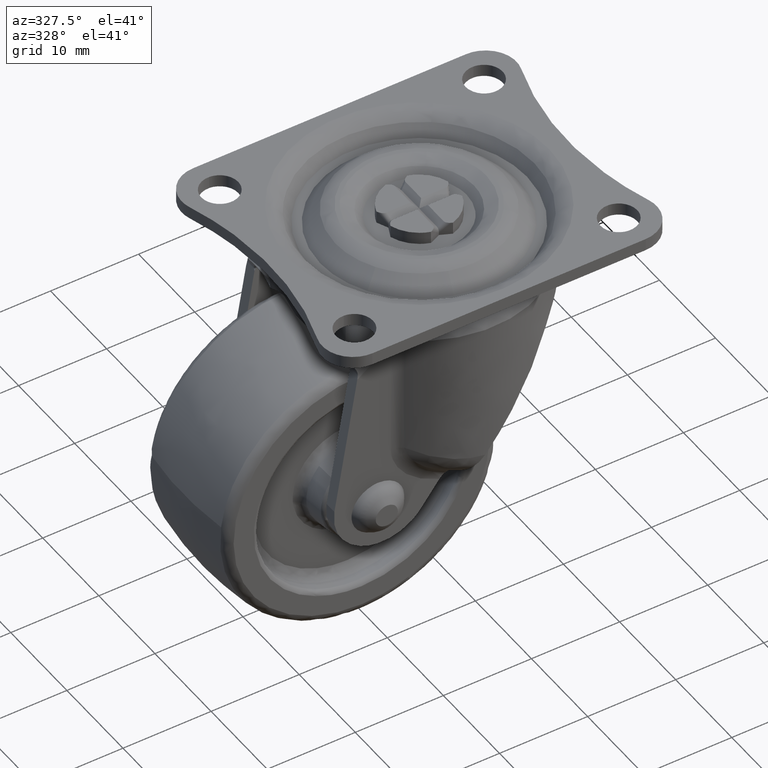
[diagram: clean part render]
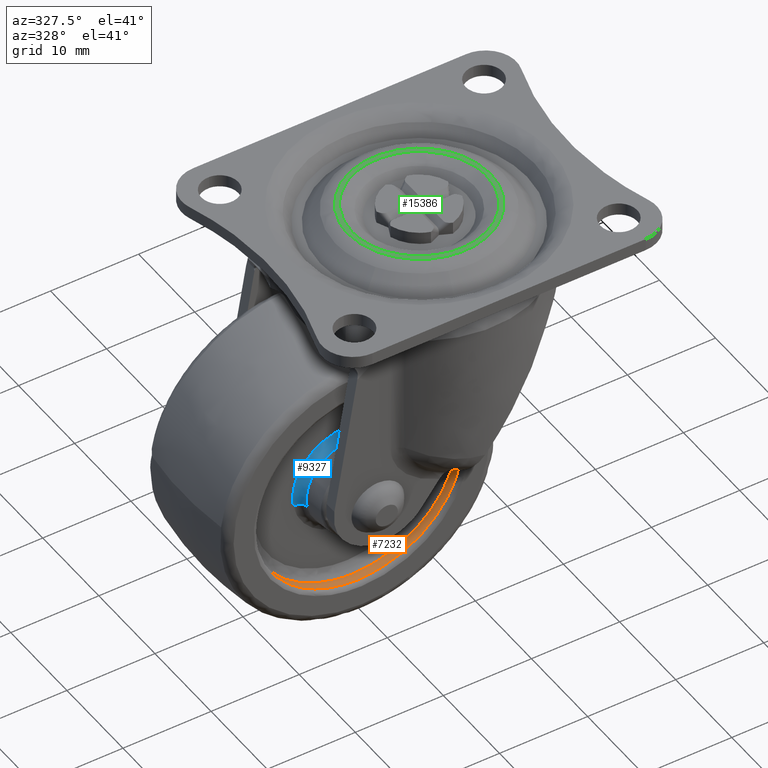
[diagram: same view with three faces highlighted in distinct colors, each labeled with its STEP entity id]
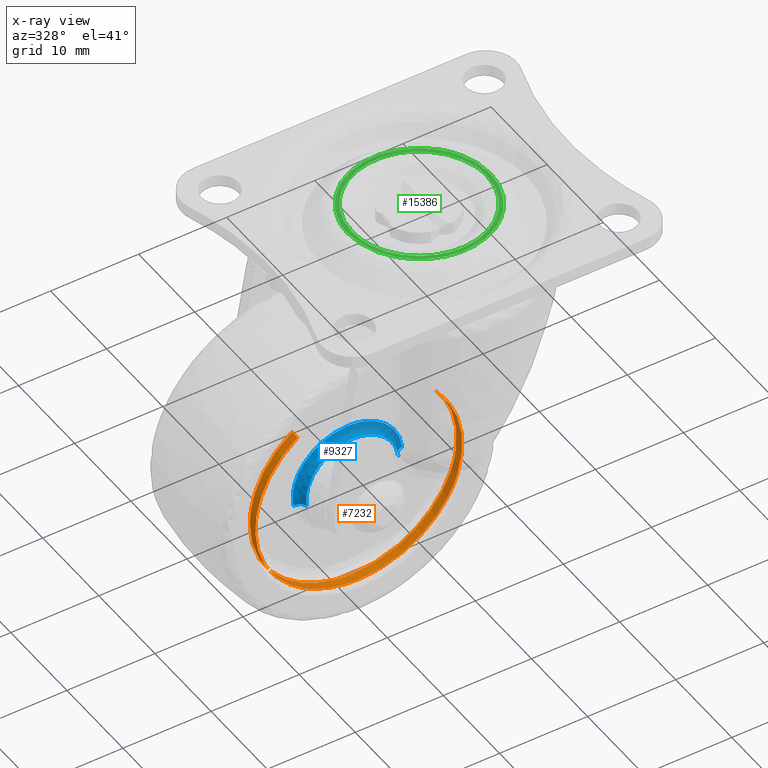
[diagram: x-ray of the same camera — body ghosted, the three highlighted faces saturated]
A machine part, auxiliary view with three faces highlighted in distinct colors.
The next image is the same camera in x-ray (body ghosted, the three faces saturated) — at least one of them is partly hidden behind the body in this view.
Their STEP definitions:

[orange] entity #7232 — the highlighted face is a freeform B-spline surface patch.
#7064=CARTESIAN_POINT('',(-6.943146605351321,-5.475000000000000,9.479199080966618));
#7065=CARTESIAN_POINT('',(-7.214437210509213,-5.474999999999999,9.280489208098997));
#7066=CARTESIAN_POINT('',(-7.473919088263724,-5.474999999999999,9.066588854805707));
#7067=CARTESIAN_POINT('',(-16.540507943069432,-5.474999999999999,1.592669766541983));
#7068=CARTESIAN_POINT('',(-9.066588854805707,-5.474999999999999,-7.473919088263723));
#7069=CARTESIAN_POINT('',(-1.592669766541983,-5.474999999999999,-16.540507943069432));
#7070=CARTESIAN_POINT('',(7.473919088263724,-5.474999999999999,-9.066588854805707));
#7071=CARTESIAN_POINT('',(16.540507943069432,-5.474999999999999,-1.592669766541982));
#7072=CARTESIAN_POINT('',(9.066588854805707,-5.474999999999999,7.473919088263725));
#7073=CARTESIAN_POINT('',(-6.943146605351321,-6.525625000000002,9.479199080966618));
#7074=CARTESIAN_POINT('',(-7.214437210509213,-6.525625000000001,9.280489208098997));
#7075=CARTESIAN_POINT('',(-7.473919088263724,-6.525625000000001,9.066588854805707));
#7076=CARTESIAN_POINT('',(-16.540507943069432,-6.525625000000001,1.592669766541983));
#7077=CARTESIAN_POINT('',(-9.066588854805707,-6.525625000000001,-7.473919088263723));
#7078=CARTESIAN_POINT('',(-1.592669766541983,-6.525625000000001,-16.540507943069432));
#7079=CARTESIAN_POINT('',(7.473919088263724,-6.525625000000001,-9.066588854805707));
#7080=CARTESIAN_POINT('',(16.540507943069432,-6.525625000000001,-1.592669766541982));
#7081=CARTESIAN_POINT('',(9.066588854805707,-6.525625000000001,7.473919088263725));
#7089=(BOUNDED_SURFACE()B_SPLINE_SURFACE(2,1,((#7064,#7073),(#7065,#7074),(#7066,#7075),(#7067,#7076),(#7068,#7077),(#7069,#7078),(#7070,#7079),(#7071,#7080),(#7072,#7081)),.UNSPECIFIED.,.F.,.F.,.U.)B_SPLINE_SURFACE_WITH_KNOTS((3,2,2,2,3),(2,2),(0.0,0.778721497261420,20.246758928796879,39.714796360332343,59.182833791867800),(0.0,1.0),.UNSPECIFIED.)GEOMETRIC_REPRESENTATION_ITEM()RATIONAL_B_SPLINE_SURFACE(((0.977505800795127,0.977505800795127),(0.988284271247462,0.988284271247462),(1.0,1.0),(0.707106781186548,0.707106781186548),(1.0,1.0),(0.707106781186548,0.707106781186548),(1.0,1.0),(0.707106781186548,0.707106781186548),(1.0,1.0)))REPRESENTATION_ITEM('')SURFACE());
#7090=CARTESIAN_POINT('',(-6.943144218075904,-6.499999999999753,9.479200829552582));
#7091=VERTEX_POINT('',#7090);
#7092=CARTESIAN_POINT('',(-5.002906675892424,-6.499999999949907,-10.631717866474400));
#7093=VERTEX_POINT('',#7092);
#7094=CARTESIAN_POINT('',(-6.943144218075904,-6.499999999999752,9.479200829552582));
#7095=CARTESIAN_POINT('',(-11.750000000000000,-6.500000000000000,5.958366792010422));
#7096=CARTESIAN_POINT('',(-11.750000000000000,-6.500000000000000,8.173480E-016));
#7097=CARTESIAN_POINT('',(-11.750000000000002,-6.500000000000000,-7.456776746139382));
#7098=CARTESIAN_POINT('',(-5.002906675892425,-6.499999999949907,-10.631717866474400));
#7106=(BOUNDED_CURVE()B_SPLINE_CURVE(2,(#7094,#7095,#7096,#7097,#7098),.UNSPECIFIED.,.F.,.U.)B_SPLINE_CURVE_WITH_KNOTS((3,2,3),(0.601836024884041,0.750000000000000,0.927668464636393),.UNSPECIFIED.)CURVE()GEOMETRIC_REPRESENTATION_ITEM()RATIONAL_B_SPLINE_CURVE((0.858582435047539,0.826415105664362,1.0,0.791848446044012,0.879552628112341))REPRESENTATION_ITEM(''));
#7107=EDGE_CURVE('',#7091,#7093,#7106,.T.);
#7108=ORIENTED_EDGE('',*,*,#7107,.T.);
#7109=CARTESIAN_POINT('',(0.0,-6.500000000000000,-11.750000000000000));
#7110=VERTEX_POINT('',#7109);
#7111=CARTESIAN_POINT('',(-5.002906675892424,-6.499999999949907,-10.631717866474400));
#7112=CARTESIAN_POINT('',(-2.626436174044774,-6.500000000000000,-11.750000000000007));
#7113=CARTESIAN_POINT('',(0.0,-6.500000000000000,-11.750000000000000));
#7121=(BOUNDED_CURVE()B_SPLINE_CURVE(2,(#7111,#7112,#7113),.UNSPECIFIED.,.F.,.U.)B_SPLINE_CURVE_WITH_KNOTS((3,3),(0.927668464636392,1.0),.UNSPECIFIED.)CURVE()GEOMETRIC_REPRESENTATION_ITEM()RATIONAL_B_SPLINE_CURVE((0.879552628112341,0.915258335142536,1.0))REPRESENTATION_ITEM(''));
#7122=EDGE_CURVE('',#7093,#7110,#7121,.T.);
#7123=ORIENTED_EDGE('',*,*,#7122,.T.);
#7124=CARTESIAN_POINT('',(11.138265860775780,-6.499999999944276,-3.741862319043396));
#7125=VERTEX_POINT('',#7124);
#7126=CARTESIAN_POINT('',(0.0,-6.500000000000000,-11.750000000000000));
#7127=CARTESIAN_POINT('',(8.447959397574214,-6.500000000000001,-11.750000000000000));
#7128=CARTESIAN_POINT('',(11.138265860775775,-6.499999999944276,-3.741862319043397));
#7136=(BOUNDED_CURVE()B_SPLINE_CURVE(2,(#7126,#7127,#7128),.UNSPECIFIED.,.F.,.U.)B_SPLINE_CURVE_WITH_KNOTS((3,3),(0.0,0.195865557710808),.UNSPECIFIED.)CURVE()GEOMETRIC_REPRESENTATION_ITEM()RATIONAL_B_SPLINE_CURVE((1.0,0.770529225389557,0.900621820758359))REPRESENTATION_ITEM(''));
#7137=EDGE_CURVE('',#7110,#7125,#7136,.T.);
#7138=ORIENTED_EDGE('',*,*,#7137,.T.);
#7139=CARTESIAN_POINT('',(9.066589178809434,-6.500000000000020,7.473918695215744));
#7140=VERTEX_POINT('',#7139);
#7141=CARTESIAN_POINT('',(11.138265860775773,-6.499999999944275,-3.741862319043396));
#7142=CARTESIAN_POINT('',(11.750000000000004,-6.500000000000001,-1.920935492283579));
#7143=CARTESIAN_POINT('',(11.750000000000000,-6.500000000000000,8.173480E-016));
#7144=CARTESIAN_POINT('',(11.750000000000000,-6.500000000000001,4.218680492239304));
#7145=CARTESIAN_POINT('',(9.066589178809434,-6.500000000000020,7.473918695215744));
#7153=(BOUNDED_CURVE()B_SPLINE_CURVE(2,(#7141,#7142,#7143,#7144,#7145),.UNSPECIFIED.,.F.,.U.)B_SPLINE_CURVE_WITH_KNOTS((3,2,3),(0.195865557710808,0.250000000000000,0.360504612746965),.UNSPECIFIED.)CURVE()GEOMETRIC_REPRESENTATION_ITEM()RATIONAL_B_SPLINE_CURVE((0.900621820758359,0.936577555796990,1.0,0.870535793115230,0.855522722601615))REPRESENTATION_ITEM(''));
#7154=EDGE_CURVE('',#7125,#7140,#7153,.T.);
#7155=ORIENTED_EDGE('',*,*,#7154,.T.);
#7156=CARTESIAN_POINT('',(9.066589174811064,-5.500000000000000,7.473918700066154));
#7157=VERTEX_POINT('',#7156);
#7158=CARTESIAN_POINT('',(9.066589174811064,-5.500000000000000,7.473918700066154));
#7159=CARTESIAN_POINT('',(9.066589178809434,-6.500000000000020,7.473918695215744));
#7160=QUASI_UNIFORM_CURVE('',1,(#7158,#7159),.UNSPECIFIED.,.F.,.U.);
#7161=EDGE_CURVE('',#7157,#7140,#7160,.T.);
#7162=ORIENTED_EDGE('',*,*,#7161,.F.);
#7163=CARTESIAN_POINT('',(11.671412719225559,-5.500000883204328,-1.356696405763593));
#7164=VERTEX_POINT('',#7163);
#7165=CARTESIAN_POINT('',(11.671412719225563,-5.500000883204328,-1.356696405763594));
#7166=CARTESIAN_POINT('',(11.749999999999998,-5.500000000000001,-0.680624305579969));
#7167=CARTESIAN_POINT('',(11.750000000000000,-5.500000000000000,8.173480E-016));
#7168=CARTESIAN_POINT('',(11.750000000000005,-5.500000000000000,4.218680499335585));
#7169=CARTESIAN_POINT('',(9.066589174811064,-5.499999999999999,7.473918700066154));
#7177=(BOUNDED_CURVE()B_SPLINE_CURVE(2,(#7165,#7166,#7167,#7168,#7169),.UNSPECIFIED.,.F.,.U.)B_SPLINE_CURVE_WITH_KNOTS((3,2,3),(0.230000120131001,0.250000000000000,0.360504612908781),.UNSPECIFIED.)CURVE()GEOMETRIC_REPRESENTATION_ITEM()RATIONAL_B_SPLINE_CURVE((0.956886354637728,0.976568683237146,1.0,0.870535792925651,0.855522722557647))REPRESENTATION_ITEM(''));
#7178=EDGE_CURVE('',#7164,#7157,#7177,.T.);
#7179=ORIENTED_EDGE('',*,*,#7178,.F.);
#7180=CARTESIAN_POINT('',(0.0,-5.500000000000000,-11.750000000000000));
#7181=VERTEX_POINT('',#7180);
#7182=CARTESIAN_POINT('',(0.0,-5.500000000000000,-11.750000000000000));
#7183=CARTESIAN_POINT('',(10.463284965587011,-5.500000000000000,-11.750000000000000));
#7184=CARTESIAN_POINT('',(11.671412719225563,-5.500000883204328,-1.356696405763594));
#7192=(BOUNDED_CURVE()B_SPLINE_CURVE(2,(#7182,#7183,#7184),.UNSPECIFIED.,.F.,.U.)B_SPLINE_CURVE_WITH_KNOTS((3,3),(0.0,0.230000120131001),.UNSPECIFIED.)CURVE()GEOMETRIC_REPRESENTATION_ITEM()RATIONAL_B_SPLINE_CURVE((1.0,0.730538097949402,0.956886354637728))REPRESENTATION_ITEM(''));
#7193=EDGE_CURVE('',#7181,#7164,#7192,.T.);
#7194=ORIENTED_EDGE('',*,*,#7193,.F.);
#7195=CARTESIAN_POINT('',(-11.749999999998639,-5.500001163718675,0.000000010181955));
#7196=VERTEX_POINT('',#7195);
#7197=CARTESIAN_POINT('',(-11.749999999998652,-5.500001163718678,0.000000010181955));
#7198=CARTESIAN_POINT('',(-11.750000010181283,-5.500000581859338,-11.750000000000005));
#7199=CARTESIAN_POINT('',(0.0,-5.500000000000000,-11.750000000000000));
#7207=(BOUNDED_CURVE()B_SPLINE_CURVE(2,(#7197,#7198,#7199),.UNSPECIFIED.,.F.,.U.)B_SPLINE_CURVE_WITH_KNOTS((3,3),(0.749999999846814,1.0),.UNSPECIFIED.)CURVE()GEOMETRIC_REPRESENTATION_ITEM()RATIONAL_B_SPLINE_CURVE((1.000000000358936,0.707106781007079,1.0))REPRESENTATION_ITEM(''));
#7208=EDGE_CURVE('',#7196,#7181,#7207,.T.);
#7209=ORIENTED_EDGE('',*,*,#7208,.F.);
#7210=CARTESIAN_POINT('',(-6.943144247525332,-5.500000456274361,9.479200807981842));
#7211=VERTEX_POINT('',#7210);
#7212=CARTESIAN_POINT('',(-6.943144247525332,-5.500000456274361,9.479200807981842));
#7213=CARTESIAN_POINT('',(-11.749999994835765,-5.500000868660690,5.958366772846385));
#7214=CARTESIAN_POINT('',(-11.749999999998646,-5.500001163718675,0.000000010181955));
#7222=(BOUNDED_CURVE()B_SPLINE_CURVE(2,(#7212,#7213,#7214),.UNSPECIFIED.,.F.,.U.)B_SPLINE_CURVE_WITH_KNOTS((3,3),(0.601836025355581,0.749999999846814),.UNSPECIFIED.)CURVE()GEOMETRIC_REPRESENTATION_ITEM()RATIONAL_B_SPLINE_CURVE((0.858582434842790,0.826415106250063,0.999999999641063))REPRESENTATION_ITEM(''));
#7223=EDGE_CURVE('',#7211,#7196,#7222,.T.);
#7224=ORIENTED_EDGE('',*,*,#7223,.F.);
#7225=CARTESIAN_POINT('',(-6.943144247525332,-5.500000456274361,9.479200807981842));
#7226=CARTESIAN_POINT('',(-6.943144218075904,-6.499999999999753,9.479200829552582));
#7227=QUASI_UNIFORM_CURVE('',1,(#7225,#7226),.UNSPECIFIED.,.F.,.U.);
#7228=EDGE_CURVE('',#7211,#7091,#7227,.T.);
#7229=ORIENTED_EDGE('',*,*,#7228,.T.);
#7230=EDGE_LOOP('',(#7108,#7123,#7138,#7155,#7162,#7179,#7194,#7209,#7224,#7229));
#7231=FACE_OUTER_BOUND('',#7230,.T.);
#7232=ADVANCED_FACE('',(#7231),#7089,.F.);

[blue] entity #9327 — the highlighted face is a freeform B-spline surface patch.
#7401=CARTESIAN_POINT('',(-3.805821790167432,-5.385638474248880,3.611590026100532));
#7402=VERTEX_POINT('',#7401);
#7408=CARTESIAN_POINT('',(-5.170782628413474,-5.385638474143114,-0.889308172101917));
#7409=VERTEX_POINT('',#7408);
#7410=CARTESIAN_POINT('',(-3.805821790167431,-5.385638474248880,3.611590026100532));
#7411=CARTESIAN_POINT('',(-5.246700107223780,-5.385638474248889,2.093221092638470));
#7412=CARTESIAN_POINT('',(-5.246700107223779,-5.385638474248890,8.173480E-016));
#7413=CARTESIAN_POINT('',(-5.246700107223780,-5.385638474248890,-0.447894505841128));
#7414=CARTESIAN_POINT('',(-5.170782628413474,-5.385638474143114,-0.889308172101917));
#7422=(BOUNDED_CURVE()B_SPLINE_CURVE(2,(#7410,#7411,#7412,#7413,#7414),.UNSPECIFIED.,.F.,.U.)B_SPLINE_CURVE_WITH_KNOTS((3,2,3),(0.628950473340915,0.750000000000000,0.779150973645348),.UNSPECIFIED.)CURVE()GEOMETRIC_REPRESENTATION_ITEM()RATIONAL_B_SPLINE_CURVE((0.853699661369436,0.858181658003903,1.0,0.965847509989872,0.939659646669409))REPRESENTATION_ITEM(''));
#7423=EDGE_CURVE('',#7402,#7409,#7422,.T.);
#7459=CARTESIAN_POINT('',(5.213180569454347,-5.385638474141951,0.592123606635350));
#7460=VERTEX_POINT('',#7459);
#7476=CARTESIAN_POINT('',(0.0,-5.385638474248890,5.246700107223780));
#7477=VERTEX_POINT('',#7476);
#7478=CARTESIAN_POINT('',(5.213180569454347,-5.385638474141952,0.592123606635350));
#7479=CARTESIAN_POINT('',(4.684504344198727,-5.385638474248889,5.246700107223780));
#7480=CARTESIAN_POINT('',(0.0,-5.385638474248890,5.246700107223780));
#7488=(BOUNDED_CURVE()B_SPLINE_CURVE(2,(#7478,#7479,#7480),.UNSPECIFIED.,.F.,.U.)B_SPLINE_CURVE_WITH_KNOTS((3,3),(0.269555763444483,0.500000000000000),.UNSPECIFIED.)CURVE()GEOMETRIC_REPRESENTATION_ITEM()RATIONAL_B_SPLINE_CURVE((0.957762333071240,0.730017783192983,1.0))REPRESENTATION_ITEM(''));
#7489=EDGE_CURVE('',#7460,#7477,#7488,.T.);
#7491=CARTESIAN_POINT('',(0.0,-5.385638474248890,5.246700107223780));
#7492=CARTESIAN_POINT('',(-2.254160260502951,-5.385638474248890,5.246700107223780));
#7493=CARTESIAN_POINT('',(-3.805821790167431,-5.385638474248880,3.611590026100532));
#7501=(BOUNDED_CURVE()B_SPLINE_CURVE(2,(#7491,#7492,#7493),.UNSPECIFIED.,.F.,.U.)B_SPLINE_CURVE_WITH_KNOTS((3,3),(0.500000000000000,0.628950473340914),.UNSPECIFIED.)CURVE()GEOMETRIC_REPRESENTATION_ITEM()RATIONAL_B_SPLINE_CURVE((1.0,0.848925123182645,0.853699661369436))REPRESENTATION_ITEM(''));
#7502=EDGE_CURVE('',#7477,#7402,#7501,.T.);
#9195=CARTESIAN_POINT('',(-6.149847190417997,-4.500000000000000,-1.057694696833937));
#9196=VERTEX_POINT('',#9195);
#9212=CARTESIAN_POINT('',(6.200272993417060,-4.500000000000000,0.704239563178839));
#9213=VERTEX_POINT('',#9212);
#9229=CARTESIAN_POINT('',(5.213180569454348,-5.385638474141951,0.592123606635350));
#9230=CARTESIAN_POINT('',(5.314481083913054,-4.500000000221814,0.603629524200000));
#9231=CARTESIAN_POINT('',(6.200272993417061,-4.500000000000000,0.704239563178839));
#9239=(BOUNDED_CURVE()B_SPLINE_CURVE(2,(#9229,#9230,#9231),.UNSPECIFIED.,.F.,.U.)B_SPLINE_CURVE_WITH_KNOTS((3,3),(-1.719052730524605,-0.292790550920305),.UNSPECIFIED.)CURVE()GEOMETRIC_REPRESENTATION_ITEM()RATIONAL_B_SPLINE_CURVE((0.892741467008177,0.664981209821737,0.888990102590360))REPRESENTATION_ITEM(''));
#9240=EDGE_CURVE('',#7460,#9213,#9239,.T.);
#9245=CARTESIAN_POINT('',(-5.170782628413474,-5.385638474143115,-0.889308172101917));
#9246=CARTESIAN_POINT('',(-5.271259282137836,-4.500000002799138,-0.906588865492495));
#9247=CARTESIAN_POINT('',(-6.149847190417997,-4.500000000000000,-1.057694696833937));
#9255=(BOUNDED_CURVE()B_SPLINE_CURVE(2,(#9245,#9246,#9247),.UNSPECIFIED.,.F.,.U.)B_SPLINE_CURVE_WITH_KNOTS((3,3),(-1.719052730527121,-0.292790554011994),.UNSPECIFIED.)CURVE()GEOMETRIC_REPRESENTATION_ITEM()RATIONAL_B_SPLINE_CURVE((0.872659962611630,0.650022990502730,0.868992981182215))REPRESENTATION_ITEM(''));
#9256=EDGE_CURVE('',#7409,#9196,#9255,.T.);
#9261=CARTESIAN_POINT('',(5.207860727412482,-5.450887357272052,0.591519368185090));
#9262=CARTESIAN_POINT('',(4.616341359227393,-5.450887357272052,5.799380095597572));
#9263=CARTESIAN_POINT('',(-0.591519368185089,-5.450887357272052,5.207860727412483));
#9264=CARTESIAN_POINT('',(-5.799380095597572,-5.450887357272052,4.616341359227396));
#9265=CARTESIAN_POINT('',(-5.207860727412482,-5.450887357272052,-0.591519368185088));
#9266=CARTESIAN_POINT('',(-5.190931713565107,-5.450887357272054,-0.740565960928253));
#9267=CARTESIAN_POINT('',(-5.165506100803621,-5.450887357272053,-0.888400383624371));
#9268=CARTESIAN_POINT('',(5.257478162953983,-4.435340233192511,0.597155016997276));
#9269=CARTESIAN_POINT('',(4.660323145956709,-4.435340233192512,5.854633179951259));
#9270=CARTESIAN_POINT('',(-0.597155016997275,-4.435340233192511,5.257478162953984));
#9271=CARTESIAN_POINT('',(-5.854633179951255,-4.435340233192512,4.660323145956709));
#9272=CARTESIAN_POINT('',(-5.257478162953983,-4.435340233192511,-0.597155016997274));
#9273=CARTESIAN_POINT('',(-5.240387859414483,-4.435340233192513,-0.747621638058245));
#9274=CARTESIAN_POINT('',(-5.214720006361190,-4.435340233192510,-0.896864540228541));
#9275=CARTESIAN_POINT('',(6.265572363708917,-4.502161845378247,0.711656397873851));
#9276=CARTESIAN_POINT('',(5.553915965835067,-4.502161845378246,6.977228761582767));
#9277=CARTESIAN_POINT('',(-0.711656397873850,-4.502161845378247,6.265572363708918));
#9278=CARTESIAN_POINT('',(-6.977228761582767,-4.502161845378246,5.553915965835069));
#9279=CARTESIAN_POINT('',(-6.265572363708917,-4.502161845378247,-0.711656397873848));
#9280=CARTESIAN_POINT('',(-6.245205083004068,-4.502161845378248,-0.890974214013018));
#9281=CARTESIAN_POINT('',(-6.214615552103179,-4.502161845378248,-1.068833669503848));
#9289=(BOUNDED_SURFACE()B_SPLINE_SURFACE(2,2,((#9261,#9268,#9275),(#9262,#9269,#9276),(#9263,#9270,#9277),(#9264,#9271,#9278),(#9265,#9272,#9279),(#9266,#9273,#9280),(#9267,#9274,#9281)),.UNSPECIFIED.,.F.,.F.,.U.)B_SPLINE_SURFACE_WITH_KNOTS((3,2,2,3),(3,3),(0.0,10.447888511736190,20.895777023472380,21.313692165386509),(0.0,1.676373684630277),.UNSPECIFIED.)GEOMETRIC_REPRESENTATION_ITEM()RATIONAL_B_SPLINE_SURFACE(((0.916621776026365,0.641288193928881,0.912495822758353),(0.648149473611499,0.453459230621986,0.645231984076829),(0.916621776026365,0.641288193928881,0.912495822758353),(0.648149473611499,0.453459230621986,0.645231984076829),(0.916621776026365,0.641288193928881,0.912495822758353),(0.905882894171176,0.633775042561712,0.901805279406398),(0.896003122045090,0.626862942730708,0.891969978706976)))REPRESENTATION_ITEM('')SURFACE());
#9290=CARTESIAN_POINT('',(0.0,-4.500000000000000,6.240139305880591));
#9291=VERTEX_POINT('',#9290);
#9292=CARTESIAN_POINT('',(0.0,-4.500000000000000,6.240139305880591));
#9293=CARTESIAN_POINT('',(-6.240139305880590,-4.500000000000000,6.240139305880593));
#9294=CARTESIAN_POINT('',(-6.240139305880590,-4.500000000000000,8.173480E-016));
#9295=CARTESIAN_POINT('',(-6.240139305880591,-4.500000000000000,-0.532701327427334));
#9296=CARTESIAN_POINT('',(-6.149847190417997,-4.500000000000000,-1.057694696833937));
#9304=(BOUNDED_CURVE()B_SPLINE_CURVE(2,(#9292,#9293,#9294,#9295,#9296),.UNSPECIFIED.,.F.,.U.)B_SPLINE_CURVE_WITH_KNOTS((3,2,3),(0.500000000000000,0.750000000000000,0.779150973654858),.UNSPECIFIED.)CURVE()GEOMETRIC_REPRESENTATION_ITEM()RATIONAL_B_SPLINE_CURVE((1.0,0.707106781186548,1.0,0.965847509978730,0.939659646652322))REPRESENTATION_ITEM(''));
#9305=EDGE_CURVE('',#9291,#9196,#9304,.T.);
#9306=ORIENTED_EDGE('',*,*,#9305,.T.);
#9307=ORIENTED_EDGE('',*,*,#9256,.F.);
#9308=ORIENTED_EDGE('',*,*,#7423,.F.);
#9309=ORIENTED_EDGE('',*,*,#7502,.F.);
#9310=ORIENTED_EDGE('',*,*,#7489,.F.);
#9311=ORIENTED_EDGE('',*,*,#9240,.T.);
#9312=CARTESIAN_POINT('',(6.200272993417061,-4.500000000000000,0.704239563178839));
#9313=CARTESIAN_POINT('',(5.571494289624317,-4.500000000000001,6.240139305880592));
#9314=CARTESIAN_POINT('',(0.0,-4.500000000000000,6.240139305880591));
#9322=(BOUNDED_CURVE()B_SPLINE_CURVE(2,(#9312,#9313,#9314),.UNSPECIFIED.,.F.,.U.)B_SPLINE_CURVE_WITH_KNOTS((3,3),(0.269555763444680,0.500000000000000),.UNSPECIFIED.)CURVE()GEOMETRIC_REPRESENTATION_ITEM()RATIONAL_B_SPLINE_CURVE((0.957762333070850,0.730017783193214,1.0))REPRESENTATION_ITEM(''));
#9323=EDGE_CURVE('',#9213,#9291,#9322,.T.);
#9324=ORIENTED_EDGE('',*,*,#9323,.T.);
#9325=EDGE_LOOP('',(#9306,#9307,#9308,#9309,#9310,#9311,#9324));
#9326=FACE_OUTER_BOUND('',#9325,.T.);
#9327=ADVANCED_FACE('',(#9326),#9289,.F.);

[green] entity #15386 — the highlighted face is a freeform B-spline surface patch.
#13644=CARTESIAN_POINT('',(-8.121571875253821,0.0,0.0));
#13645=VERTEX_POINT('',#13644);
#13646=CARTESIAN_POINT('',(6.399048260659294,-5.001210963142701,-3.133042E-016));
#13647=VERTEX_POINT('',#13646);
#13648=CARTESIAN_POINT('',(-8.121571875253821,0.0,0.0));
#13649=CARTESIAN_POINT('',(-8.121571875253821,-8.121571875253821,0.0));
#13650=CARTESIAN_POINT('',(0.0,-8.121571875253821,0.0));
#13651=CARTESIAN_POINT('',(3.960313221526396,-8.121571875253819,0.0));
#13652=CARTESIAN_POINT('',(6.399048260659294,-5.001210963142701,-3.133042E-016));
#13660=(BOUNDED_CURVE()B_SPLINE_CURVE(2,(#13648,#13649,#13650,#13651,#13652),.UNSPECIFIED.,.F.,.U.)B_SPLINE_CURVE_WITH_KNOTS((3,2,3),(0.0,0.250000000000000,0.393432082113425),.UNSPECIFIED.)CURVE()GEOMETRIC_REPRESENTATION_ITEM()RATIONAL_B_SPLINE_CURVE((1.0,0.707106781186548,1.0,0.831958863154734,0.856737647416856))REPRESENTATION_ITEM(''));
#13661=EDGE_CURVE('',#13645,#13647,#13660,.T.);
#13663=CARTESIAN_POINT('',(5.706622233206260,5.778788144606761,-2.997964E-016));
#13664=VERTEX_POINT('',#13663);
#13665=CARTESIAN_POINT('',(5.706622233206260,5.778788144606760,-2.997964E-016));
#13666=CARTESIAN_POINT('',(3.334211672508807,8.121571875253821,0.0));
#13667=CARTESIAN_POINT('',(0.0,8.121571875253821,0.0));
#13668=CARTESIAN_POINT('',(-8.121571875253821,8.121571875253821,0.0));
#13669=CARTESIAN_POINT('',(-8.121571875253821,0.0,0.0));
#13677=(BOUNDED_CURVE()B_SPLINE_CURVE(2,(#13665,#13666,#13667,#13668,#13669),.UNSPECIFIED.,.F.,.U.)B_SPLINE_CURVE_WITH_KNOTS((3,2,3),(0.625948062567968,0.750000000000000,1.0),.UNSPECIFIED.)CURVE()GEOMETRIC_REPRESENTATION_ITEM()RATIONAL_B_SPLINE_CURVE((0.853561814883004,0.854664114981949,1.0,0.707106781186548,1.0))REPRESENTATION_ITEM(''));
#13678=EDGE_CURVE('',#13664,#13645,#13677,.T.);
#13730=CARTESIAN_POINT('',(8.121571875253821,0.0,0.0));
#13731=VERTEX_POINT('',#13730);
#13732=CARTESIAN_POINT('',(6.399048260659294,-5.001210963142701,-3.133042E-016));
#13733=CARTESIAN_POINT('',(8.121571875253821,-2.797242398603489,0.0));
#13734=CARTESIAN_POINT('',(8.121571875253821,0.0,0.0));
#13742=(BOUNDED_CURVE()B_SPLINE_CURVE(2,(#13732,#13733,#13734),.UNSPECIFIED.,.F.,.U.)B_SPLINE_CURVE_WITH_KNOTS((3,3),(0.393432082113425,0.500000000000000),.UNSPECIFIED.)CURVE()GEOMETRIC_REPRESENTATION_ITEM()RATIONAL_B_SPLINE_CURVE((0.856737647416856,0.875147918031813,1.0))REPRESENTATION_ITEM(''));
#13743=EDGE_CURVE('',#13647,#13731,#13742,.T.);
#13749=CARTESIAN_POINT('',(8.121571875253821,0.0,0.0));
#13750=CARTESIAN_POINT('',(8.121571875253821,3.393996562279431,0.0));
#13751=CARTESIAN_POINT('',(5.706622233206260,5.778788144606760,-2.997964E-016));
#13759=(BOUNDED_CURVE()B_SPLINE_CURVE(2,(#13749,#13750,#13751),.UNSPECIFIED.,.F.,.U.)B_SPLINE_CURVE_WITH_KNOTS((3,3),(0.500000000000000,0.625948062567969),.UNSPECIFIED.)CURVE()GEOMETRIC_REPRESENTATION_ITEM()RATIONAL_B_SPLINE_CURVE((1.0,0.852442666204598,0.853561814883004))REPRESENTATION_ITEM(''));
#13760=EDGE_CURVE('',#13731,#13664,#13759,.T.);
#13800=CARTESIAN_POINT('',(4.697536874826680,6.010497335561126,-3.457553E-016));
#13801=VERTEX_POINT('',#13800);
#13802=CARTESIAN_POINT('',(7.628429124746271,0.0,0.0));
#13803=VERTEX_POINT('',#13802);
#13804=CARTESIAN_POINT('',(4.697536874826679,6.010497335561126,-3.457553E-016));
#13805=CARTESIAN_POINT('',(7.628429124746269,3.719842560852047,0.0));
#13806=CARTESIAN_POINT('',(7.628429124746271,0.0,0.0));
#13814=(BOUNDED_CURVE()B_SPLINE_CURVE(2,(#13804,#13805,#13806),.UNSPECIFIED.,.F.,.U.)B_SPLINE_CURVE_WITH_KNOTS((3,3),(0.356567917885080,0.500000000000000),.UNSPECIFIED.)CURVE()GEOMETRIC_REPRESENTATION_ITEM()RATIONAL_B_SPLINE_CURVE((0.856737647417372,0.831958863152983,1.0))REPRESENTATION_ITEM(''));
#13815=EDGE_CURVE('',#13801,#13803,#13814,.T.);
#13835=CARTESIAN_POINT('',(-5.427899483275188,5.360115494071915,-3.007714E-016));
#13836=VERTEX_POINT('',#13835);
#13850=CARTESIAN_POINT('',(-7.628429124746271,0.0,0.0));
#13851=VERTEX_POINT('',#13850);
#13852=CARTESIAN_POINT('',(-7.628429124746271,0.0,0.0));
#13853=CARTESIAN_POINT('',(-7.628429124746271,3.131757967707311,0.0));
#13854=CARTESIAN_POINT('',(-5.427899483275188,5.360115494071915,-3.007714E-016));
#13862=(BOUNDED_CURVE()B_SPLINE_CURVE(2,(#13852,#13853,#13854),.UNSPECIFIED.,.F.,.U.)B_SPLINE_CURVE_WITH_KNOTS((3,3),(0.0,0.124051937432026),.UNSPECIFIED.)CURVE()GEOMETRIC_REPRESENTATION_ITEM()RATIONAL_B_SPLINE_CURVE((1.0,0.854664114981955,0.853561814883004))REPRESENTATION_ITEM(''));
#13863=EDGE_CURVE('',#13851,#13836,#13862,.T.);
#13865=CARTESIAN_POINT('',(7.628429124746271,0.0,0.0));
#13866=CARTESIAN_POINT('',(7.628429124746271,-7.628429124746271,0.0));
#13867=CARTESIAN_POINT('',(0.0,-7.628429124746271,0.0));
#13868=CARTESIAN_POINT('',(-7.628429124746271,-7.628429124746271,0.0));
#13869=CARTESIAN_POINT('',(-7.628429124746271,0.0,0.0));
#13877=(BOUNDED_CURVE()B_SPLINE_CURVE(2,(#13865,#13866,#13867,#13868,#13869),.UNSPECIFIED.,.F.,.U.)B_SPLINE_CURVE_WITH_KNOTS((3,2,3),(0.500000000000000,0.750000000000000,1.0),.UNSPECIFIED.)CURVE()GEOMETRIC_REPRESENTATION_ITEM()RATIONAL_B_SPLINE_CURVE((1.0,0.707106781186548,1.0,0.707106781186548,1.0))REPRESENTATION_ITEM(''));
#13878=EDGE_CURVE('',#13803,#13851,#13877,.T.);
#13900=CARTESIAN_POINT('',(-5.427899483275189,5.360115494071914,-3.007714E-016));
#13901=CARTESIAN_POINT('',(-3.187912712300310,7.628429124746270,0.0));
#13902=CARTESIAN_POINT('',(0.0,7.628429124746271,0.0));
#13903=CARTESIAN_POINT('',(2.627393527989073,7.628429124746270,0.0));
#13904=CARTESIAN_POINT('',(4.697536874826679,6.010497335561126,-3.457553E-016));
#13912=(BOUNDED_CURVE()B_SPLINE_CURVE(2,(#13900,#13901,#13902,#13903,#13904),.UNSPECIFIED.,.F.,.U.)B_SPLINE_CURVE_WITH_KNOTS((3,2,3),(0.124051937432026,0.250000000000000,0.356567917885080),.UNSPECIFIED.)CURVE()GEOMETRIC_REPRESENTATION_ITEM()RATIONAL_B_SPLINE_CURVE((0.853561814883004,0.852442666204592,1.0,0.875147918033565,0.856737647417372))REPRESENTATION_ITEM(''));
#13913=EDGE_CURVE('',#13836,#13801,#13912,.T.);
#15369=CARTESIAN_POINT('',(-8.932916511119371,8.932842110945902,0.0));
#15370=CARTESIAN_POINT('',(8.932916075444306,8.932842110945902,0.0));
#15371=CARTESIAN_POINT('',(-8.932916511119371,-8.932907522299493,0.0));
#15372=CARTESIAN_POINT('',(8.932916075444306,-8.932907522299493,0.0));
#15373=B_SPLINE_SURFACE_WITH_KNOTS('',1,1,((#15369,#15371),(#15370,#15372)),.UNSPECIFIED.,.F.,.F.,.U.,(2,2),(2,2),(0.0,17.865832586563680),(0.0,17.865749633245390),.UNSPECIFIED.);
#15374=ORIENTED_EDGE('',*,*,#13661,.T.);
#15375=ORIENTED_EDGE('',*,*,#13743,.T.);
#15376=ORIENTED_EDGE('',*,*,#13760,.T.);
#15377=ORIENTED_EDGE('',*,*,#13678,.T.);
#15378=EDGE_LOOP('',(#15374,#15375,#15376,#15377));
#15379=FACE_OUTER_BOUND('',#15378,.T.);
#15380=ORIENTED_EDGE('',*,*,#13878,.T.);
#15381=ORIENTED_EDGE('',*,*,#13863,.T.);
#15382=ORIENTED_EDGE('',*,*,#13913,.T.);
#15383=ORIENTED_EDGE('',*,*,#13815,.T.);
#15384=EDGE_LOOP('',(#15380,#15381,#15382,#15383));
#15385=FACE_BOUND('',#15384,.T.);
#15386=ADVANCED_FACE('',(#15379,#15385),#15373,.F.);